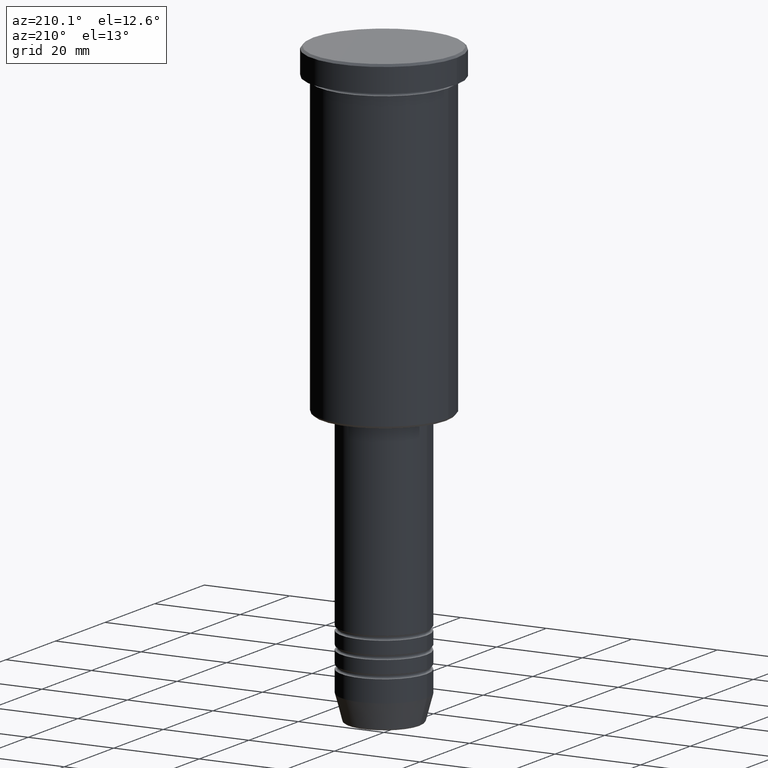
[diagram: clean part render]
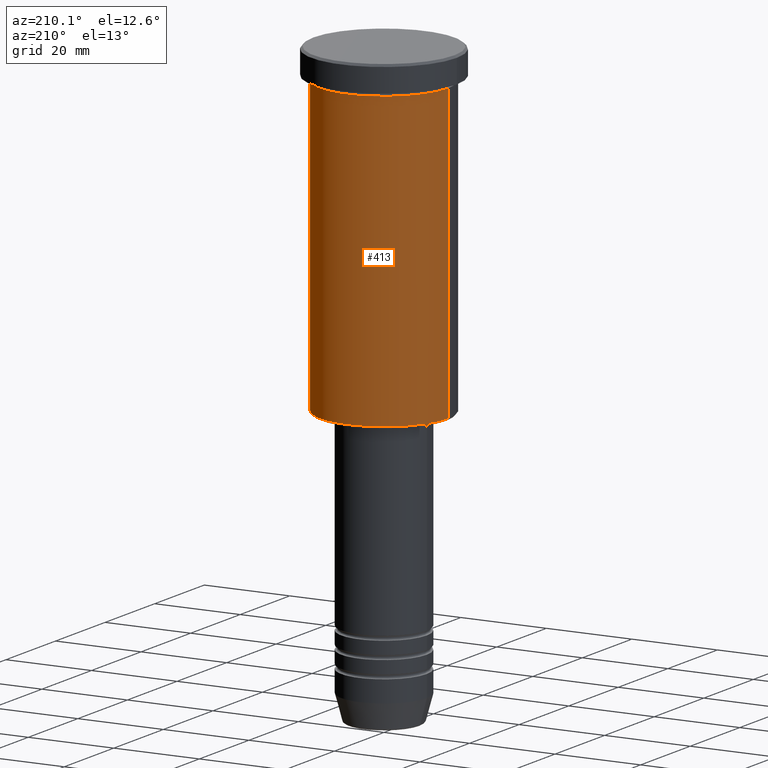
[diagram: same view with one face highlighted and labeled with its STEP entity id]
A machine part, auxiliary view. The second image highlights one B-rep face of the part: STEP entity #413.
In plain terms, the highlighted cylindrical surface (partial cylindrical patch) has radius 15 mm, axis along (-0, -0, 1).
Its self-contained STEP definition (entity closure, byte-faithful):
#38 = DIRECTION ( 'NONE',  ( 1.000000000000000000, 0.000000000000000000, 0.000000000000000000 ) ) ;
#71 = CARTESIAN_POINT ( 'NONE',  ( 0.000000000000000000, 0.000000000000000000, -75.50000000000000000 ) ) ;
#87 = CARTESIAN_POINT ( 'NONE',  ( 15.00000000000000000, 0.000000000000000000, -6.999999999999995559 ) ) ;
#136 = VERTEX_POINT ( 'NONE', #478 ) ;
#139 = AXIS2_PLACEMENT_3D ( 'NONE', #71, #439, #898 ) ;
#159 = CARTESIAN_POINT ( 'NONE',  ( 0.000000000000000000, 0.000000000000000000, -6.999999999999995559 ) ) ;
#238 = ORIENTED_EDGE ( 'NONE', *, *, #714, .T. ) ;
#277 = EDGE_CURVE ( 'NONE', #502, #449, #853, .T. ) ;
#338 = EDGE_CURVE ( 'NONE', #502, #629, #847, .T. ) ;
#360 = CARTESIAN_POINT ( 'NONE',  ( -15.00000000000000000, 1.836970198721029589E-15, 0.000000000000000000 ) ) ;
#373 = LINE ( 'NONE', #360, #776 ) ;
#375 = EDGE_CURVE ( 'NONE', #449, #136, #899, .T. ) ;
#411 = CYLINDRICAL_SURFACE ( 'NONE', #1157, 15.00000000000000000 ) ;
#413 = ADVANCED_FACE ( 'NONE', ( #612 ), #411, .T. ) ;
#431 = CARTESIAN_POINT ( 'NONE',  ( -15.00000000000000000, 1.836970198721029589E-15, -75.50000000000000000 ) ) ;
#436 = ORIENTED_EDGE ( 'NONE', *, *, #277, .F. ) ;
#439 = DIRECTION ( 'NONE',  ( -0.000000000000000000, -0.000000000000000000, 1.000000000000000000 ) ) ;
#449 = VERTEX_POINT ( 'NONE', #87 ) ;
#478 = CARTESIAN_POINT ( 'NONE',  ( -15.00000000000000000, 1.836970198721029589E-15, -6.999999999999995559 ) ) ;
#502 = VERTEX_POINT ( 'NONE', #1159 ) ;
#514 = DIRECTION ( 'NONE',  ( 1.000000000000000000, 0.000000000000000000, 0.000000000000000000 ) ) ;
#585 = EDGE_LOOP ( 'NONE', ( #696, #238, #1065, #436 ) ) ;
#612 = FACE_OUTER_BOUND ( 'NONE', #585, .T. ) ;
#629 = VERTEX_POINT ( 'NONE', #431 ) ;
#630 = DIRECTION ( 'NONE',  ( -0.000000000000000000, -0.000000000000000000, 1.000000000000000000 ) ) ;
#696 = ORIENTED_EDGE ( 'NONE', *, *, #338, .T. ) ;
#714 = EDGE_CURVE ( 'NONE', #629, #136, #373, .T. ) ;
#776 = VECTOR ( 'NONE', #827, 1000.000000000000000 ) ;
#827 = DIRECTION ( 'NONE',  ( -0.000000000000000000, -0.000000000000000000, 1.000000000000000000 ) ) ;
#838 = CARTESIAN_POINT ( 'NONE',  ( 15.00000000000000000, 0.000000000000000000, 0.000000000000000000 ) ) ;
#847 = CIRCLE ( 'NONE', #139, 15.00000000000000000 ) ;
#853 = LINE ( 'NONE', #838, #1008 ) ;
#866 = CARTESIAN_POINT ( 'NONE',  ( 0.000000000000000000, 0.000000000000000000, 0.000000000000000000 ) ) ;
#898 = DIRECTION ( 'NONE',  ( -1.000000000000000000, 0.000000000000000000, 0.000000000000000000 ) ) ;
#899 = CIRCLE ( 'NONE', #1062, 15.00000000000000000 ) ;
#924 = DIRECTION ( 'NONE',  ( -0.000000000000000000, -0.000000000000000000, 1.000000000000000000 ) ) ;
#1008 = VECTOR ( 'NONE', #924, 1000.000000000000000 ) ;
#1062 = AXIS2_PLACEMENT_3D ( 'NONE', #159, #630, #38 ) ;
#1065 = ORIENTED_EDGE ( 'NONE', *, *, #375, .F. ) ;
#1129 = DIRECTION ( 'NONE',  ( -0.000000000000000000, -0.000000000000000000, 1.000000000000000000 ) ) ;
#1157 = AXIS2_PLACEMENT_3D ( 'NONE', #866, #1129, #514 ) ;
#1159 = CARTESIAN_POINT ( 'NONE',  ( 15.00000000000000000, 0.000000000000000000, -75.50000000000000000 ) ) ;